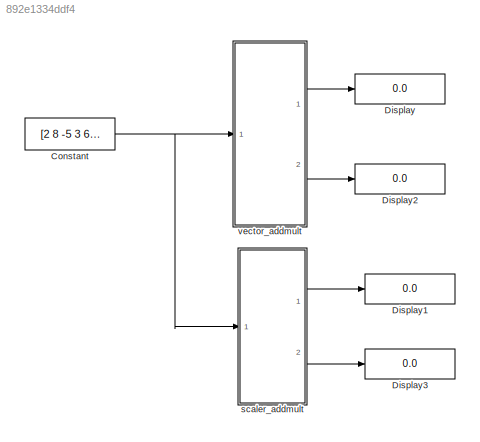
MODEL slx_892e1334ddf4
KIND model
CONFIG AbsTol = auto
CONFIG FixedStep = auto
CONFIG MaxStep = auto
CONFIG MinStep = auto
CONFIG RelTol = 1e-3
CONFIG SampleTimeConstraint = Unconstrained
CONFIG Solver = FixedStepDiscrete
CONFIG SolverMode = SingleTasking
CONFIG SolverName = FixedStepDiscrete
CONFIG StartTime = 0.0
CONFIG StopTime = 10
BLOCK [Constant] Constant
  OutDataTypeStr = int8
  SampleTime = 1
  Value = [2 8 -5 3 6 4 9 1]
BLOCK [Display] Display
  Decimation = 1
  Ports = [1]
BLOCK [Display] Display1
  Decimation = 1
  Ports = [1]
BLOCK [Display] Display2
  Decimation = 1
  Ports = [1]
BLOCK [Display] Display3
  Decimation = 1
  Ports = [1]
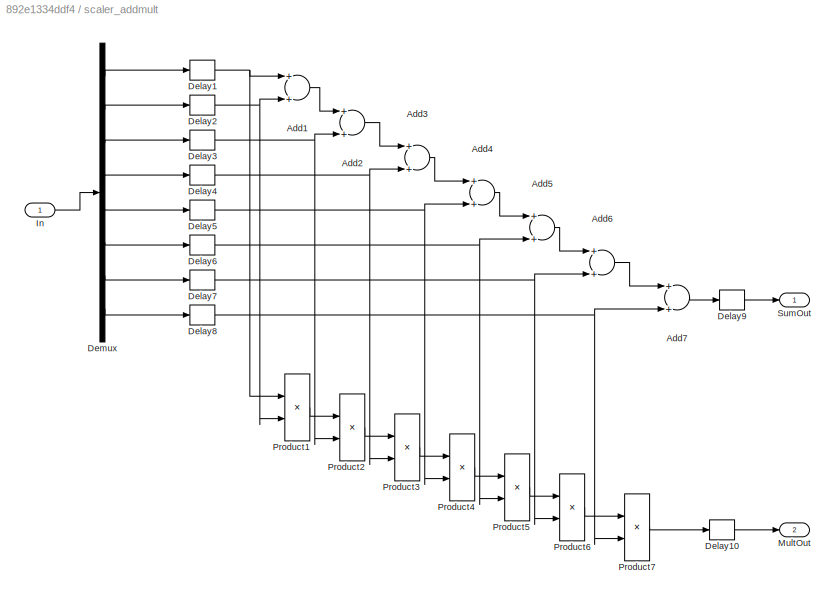
BLOCK [SubSystem] scaler_addmult
  Ports = [1, 2]
  RequestExecContextInheritance = off
  Variant = off
BLOCK [Sum] scaler_addmult/Add1
  InputSameDT = off
  OutDataTypeStr = Inherit: Inherit via internal rule
  Ports = [2, 1]
  SaturateOnIntegerOverflow = off
BLOCK [Sum] scaler_addmult/Add2
  InputSameDT = off
  OutDataTypeStr = Inherit: Inherit via internal rule
  Ports = [2, 1]
  SaturateOnIntegerOverflow = off
BLOCK [Sum] scaler_addmult/Add3
  InputSameDT = off
  OutDataTypeStr = Inherit: Inherit via internal rule
  Ports = [2, 1]
  SaturateOnIntegerOverflow = off
BLOCK [Sum] scaler_addmult/Add4
  InputSameDT = off
  OutDataTypeStr = Inherit: Inherit via internal rule
  Ports = [2, 1]
  SaturateOnIntegerOverflow = off
BLOCK [Sum] scaler_addmult/Add5
  InputSameDT = off
  OutDataTypeStr = Inherit: Inherit via internal rule
  Ports = [2, 1]
  SaturateOnIntegerOverflow = off
BLOCK [Sum] scaler_addmult/Add6
  InputSameDT = off
  OutDataTypeStr = Inherit: Inherit via internal rule
  Ports = [2, 1]
  SaturateOnIntegerOverflow = off
BLOCK [Sum] scaler_addmult/Add7
  InputSameDT = off
  OutDataTypeStr = Inherit: Inherit via internal rule
  Ports = [2, 1]
  SaturateOnIntegerOverflow = off
BLOCK [Delay] scaler_addmult/Delay1
  DelayLength = 1
  InputPortMap = u0
  InputProcessing = Inherited
  Ports = [1, 1]
BLOCK [Delay] scaler_addmult/Delay10
  DelayLength = 1
  InputPortMap = u0
  InputProcessing = Inherited
  Ports = [1, 1]
BLOCK [Delay] scaler_addmult/Delay2
  DelayLength = 1
  InputPortMap = u0
  InputProcessing = Inherited
  Ports = [1, 1]
BLOCK [Delay] scaler_addmult/Delay3
  DelayLength = 1
  InputPortMap = u0
  InputProcessing = Inherited
  Ports = [1, 1]
BLOCK [Delay] scaler_addmult/Delay4
  DelayLength = 1
  InputPortMap = u0
  InputProcessing = Inherited
  Ports = [1, 1]
BLOCK [Delay] scaler_addmult/Delay5
  DelayLength = 1
  InputPortMap = u0
  InputProcessing = Inherited
  Ports = [1, 1]
BLOCK [Delay] scaler_addmult/Delay6
  DelayLength = 1
  InputPortMap = u0
  InputProcessing = Inherited
  Ports = [1, 1]
BLOCK [Delay] scaler_addmult/Delay7
  DelayLength = 1
  InputPortMap = u0
  InputProcessing = Inherited
  Ports = [1, 1]
BLOCK [Delay] scaler_addmult/Delay8
  DelayLength = 1
  InputPortMap = u0
  InputProcessing = Inherited
  Ports = [1, 1]
BLOCK [Delay] scaler_addmult/Delay9
  DelayLength = 1
  InputPortMap = u0
  InputProcessing = Inherited
  Ports = [1, 1]
BLOCK [Demux] scaler_addmult/Demux
  DisplayOption = bar
  Outputs = 8
  Ports = [1, 8]
BLOCK [Inport] scaler_addmult/In
  IconDisplay = Port number
BLOCK [Outport] scaler_addmult/MultOut
  IconDisplay = Port number
  Port = 2
BLOCK [Product] scaler_addmult/Product1
  InputSameDT = off
  OutDataTypeStr = Inherit: Inherit via internal rule
  Ports = [2, 1]
  SaturateOnIntegerOverflow = off
BLOCK [Product] scaler_addmult/Product2
  InputSameDT = off
  OutDataTypeStr = Inherit: Inherit via internal rule
  Ports = [2, 1]
  SaturateOnIntegerOverflow = off
BLOCK [Product] scaler_addmult/Product3
  InputSameDT = off
  OutDataTypeStr = Inherit: Inherit via internal rule
  Ports = [2, 1]
  SaturateOnIntegerOverflow = off
BLOCK [Product] scaler_addmult/Product4
  InputSameDT = off
  OutDataTypeStr = Inherit: Inherit via internal rule
  Ports = [2, 1]
  SaturateOnIntegerOverflow = off
BLOCK [Product] scaler_addmult/Product5
  InputSameDT = off
  OutDataTypeStr = Inherit: Inherit via internal rule
  Ports = [2, 1]
  SaturateOnIntegerOverflow = off
BLOCK [Product] scaler_addmult/Product6
  InputSameDT = off
  OutDataTypeStr = Inherit: Inherit via internal rule
  Ports = [2, 1]
  SaturateOnIntegerOverflow = off
BLOCK [Product] scaler_addmult/Product7
  InputSameDT = off
  OutDataTypeStr = Inherit: Inherit via internal rule
  Ports = [2, 1]
  SaturateOnIntegerOverflow = off
BLOCK [Outport] scaler_addmult/SumOut
  IconDisplay = Port number
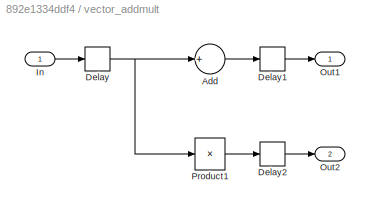
BLOCK [SubSystem] vector_addmult
  Ports = [1, 2]
  RequestExecContextInheritance = off
  Variant = off
BLOCK [Sum] vector_addmult/Add
  InputSameDT = off
  Inputs = +
  OutDataTypeStr = fixdt(1,15,0)
  Ports = [1, 1]
  RndMeth = Nearest
  SaturateOnIntegerOverflow = off
BLOCK [Delay] vector_addmult/Delay
  DelayLength = 1
  InputPortMap = u0
  Ports = [1, 1]
BLOCK [Delay] vector_addmult/Delay1
  DelayLength = 1
  InputPortMap = u0
  Ports = [1, 1]
BLOCK [Delay] vector_addmult/Delay2
  DelayLength = 1
  InputPortMap = u0
  Ports = [1, 1]
BLOCK [Inport] vector_addmult/In
  IconDisplay = Port number
BLOCK [Outport] vector_addmult/Out1
  IconDisplay = Port number
BLOCK [Outport] vector_addmult/Out2
  IconDisplay = Port number
  Port = 2
BLOCK [Product] vector_addmult/Product1
  InputSameDT = off
  Inputs = 1
  OutDataTypeStr = fixdt(1,64,0)
  Ports = [1, 1]
  RndMeth = Nearest
  SaturateOnIntegerOverflow = off
NET Constant:1 -> scaler_addmult:1, vector_addmult:1
LINE scaler_addmult/Add1:1 -> scaler_addmult/Add2:1
LINE scaler_addmult/Add2:1 -> scaler_addmult/Add3:1
LINE scaler_addmult/Add3:1 -> scaler_addmult/Add4:1
LINE scaler_addmult/Add4:1 -> scaler_addmult/Add5:1
LINE scaler_addmult/Add5:1 -> scaler_addmult/Add6:1
LINE scaler_addmult/Add6:1 -> scaler_addmult/Add7:1
LINE scaler_addmult/Add7:1 -> scaler_addmult/Delay9:1
LINE scaler_addmult/Delay10:1 -> scaler_addmult/MultOut:1
NET scaler_addmult/Delay1:1 -> scaler_addmult/Add1:1, scaler_addmult/Product1:1
NET scaler_addmult/Delay2:1 -> scaler_addmult/Add1:2, scaler_addmult/Product1:2
NET scaler_addmult/Delay3:1 -> scaler_addmult/Add2:2, scaler_addmult/Product2:2
NET scaler_addmult/Delay4:1 -> scaler_addmult/Add3:2, scaler_addmult/Product3:2
NET scaler_addmult/Delay5:1 -> scaler_addmult/Add4:2, scaler_addmult/Product4:2
NET scaler_addmult/Delay6:1 -> scaler_addmult/Add5:2, scaler_addmult/Product5:2
NET scaler_addmult/Delay7:1 -> scaler_addmult/Add6:2, scaler_addmult/Product6:2
NET scaler_addmult/Delay8:1 -> scaler_addmult/Add7:2, scaler_addmult/Product7:2
LINE scaler_addmult/Delay9:1 -> scaler_addmult/SumOut:1
LINE scaler_addmult/Demux:1 -> scaler_addmult/Delay1:1
LINE scaler_addmult/Demux:2 -> scaler_addmult/Delay2:1
LINE scaler_addmult/Demux:3 -> scaler_addmult/Delay3:1
LINE scaler_addmult/Demux:4 -> scaler_addmult/Delay4:1
LINE scaler_addmult/Demux:5 -> scaler_addmult/Delay5:1
LINE scaler_addmult/Demux:6 -> scaler_addmult/Delay6:1
LINE scaler_addmult/Demux:7 -> scaler_addmult/Delay7:1
LINE scaler_addmult/Demux:8 -> scaler_addmult/Delay8:1
LINE scaler_addmult/In:1 -> scaler_addmult/Demux:1
LINE scaler_addmult/Product1:1 -> scaler_addmult/Product2:1
LINE scaler_addmult/Product2:1 -> scaler_addmult/Product3:1
LINE scaler_addmult/Product3:1 -> scaler_addmult/Product4:1
LINE scaler_addmult/Product4:1 -> scaler_addmult/Product5:1
LINE scaler_addmult/Product5:1 -> scaler_addmult/Product6:1
LINE scaler_addmult/Product6:1 -> scaler_addmult/Product7:1
LINE scaler_addmult/Product7:1 -> scaler_addmult/Delay10:1
LINE scaler_addmult:1 -> Display1:1
LINE scaler_addmult:2 -> Display3:1
LINE vector_addmult/Add:1 -> vector_addmult/Delay1:1
LINE vector_addmult/Delay1:1 -> vector_addmult/Out1:1
LINE vector_addmult/Delay2:1 -> vector_addmult/Out2:1
NET vector_addmult/Delay:1 -> vector_addmult/Add:1, vector_addmult/Product1:1
LINE vector_addmult/In:1 -> vector_addmult/Delay:1
LINE vector_addmult/Product1:1 -> vector_addmult/Delay2:1
LINE vector_addmult:1 -> Display:1
LINE vector_addmult:2 -> Display2:1
note: NET lines group one-source signal fan-out (src -> all destinations, sorted); 1:1 wires keep LINE
